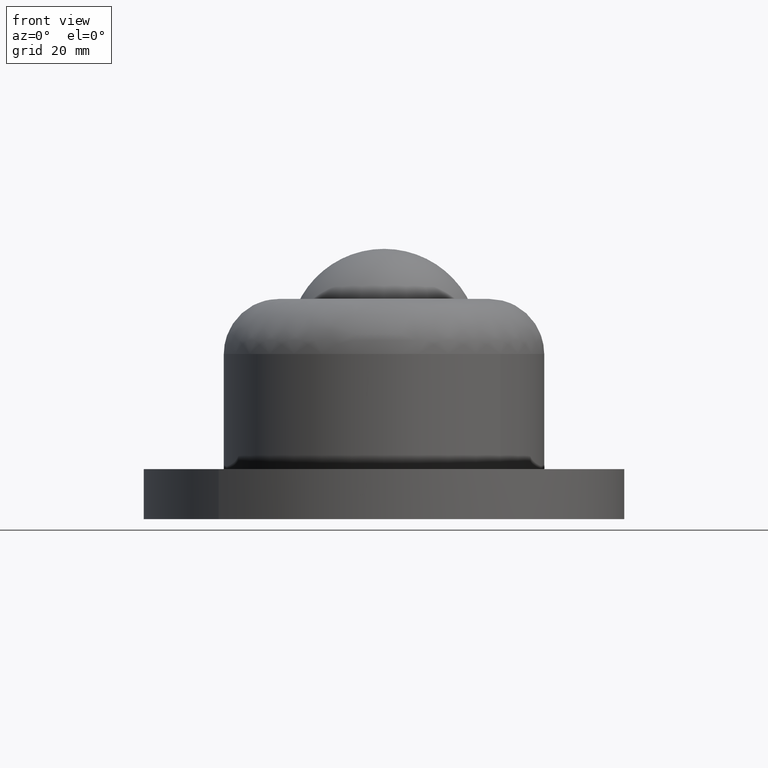
[diagram: clean part render]
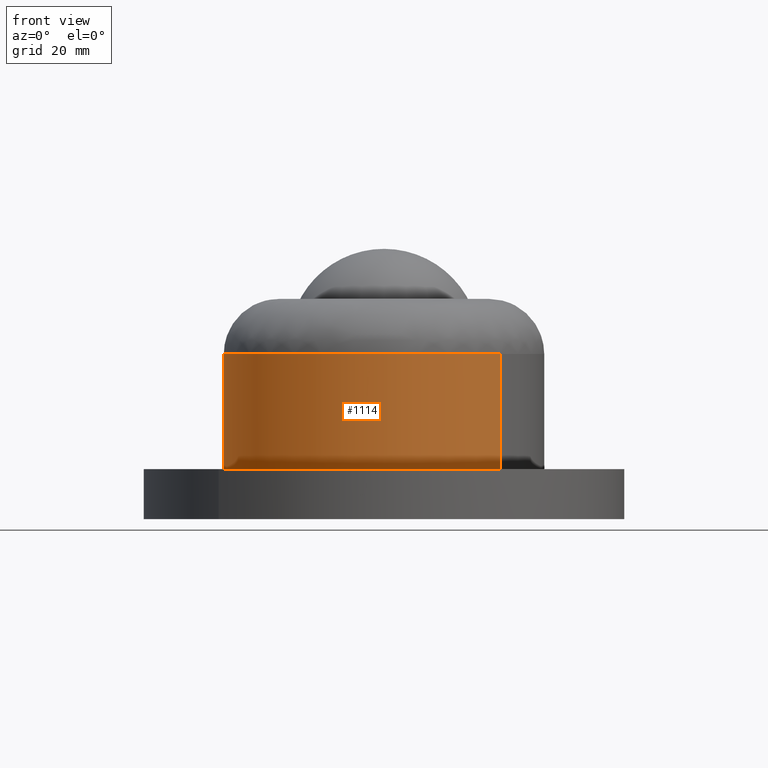
[diagram: same view with one face highlighted and labeled with its STEP entity id]
A machine part, front view. The second image highlights one B-rep face of the part: STEP entity #1114.
In plain terms, the highlighted face is a freeform B-spline surface patch.
Its self-contained STEP definition (entity closure, byte-faithful):
#802=CARTESIAN_POINT('',(-31.999999999986311,-3.502005E-015,32.999987729900710));
#803=VERTEX_POINT('',#802);
#856=CARTESIAN_POINT('',(-23.211979667101119,22.027346203090371,32.999987729899402));
#857=VERTEX_POINT('',#856);
#870=CARTESIAN_POINT('',(-31.999999999986311,-3.502005E-015,32.999987729900710));
#871=CARTESIAN_POINT('',(-32.000123657495820,1.708247174777304,32.999987729900432));
#872=CARTESIAN_POINT('',(-31.761294798825929,4.681816467675262,32.999987729900710));
#873=CARTESIAN_POINT('',(-30.754086142089200,9.197562946077358,32.999987729900099));
#874=CARTESIAN_POINT('',(-29.206457528460440,13.361188404306640,32.999987729899729));
#875=CARTESIAN_POINT('',(-26.724517056942741,17.859649025212072,32.999987729899857));
#876=CARTESIAN_POINT('',(-24.562212486051109,20.604791163184810,32.999987729899338));
#877=CARTESIAN_POINT('',(-23.211979667101119,22.027346203090371,32.999987729899402));
#878=B_SPLINE_CURVE_WITH_KNOTS('',3,(#870,#871,#872,#873,#874,#875,#876,#877),.UNSPECIFIED.,.F.,.U.,(4,1,1,1,1,4),(0.000000015660500,5.124729688280517,8.920838670288161,13.855734277039060,18.411069375794050,24.295018669714690),.UNSPECIFIED.);
#879=EDGE_CURVE('',#803,#857,#878,.T.);
#914=CARTESIAN_POINT('',(-0.000001200577572,-31.999999999999979,32.999987729900852));
#915=VERTEX_POINT('',#914);
#916=CARTESIAN_POINT('',(-0.000001200577572,-31.999999999999979,32.999987729900852));
#917=CARTESIAN_POINT('',(-1.832593725610284,-32.000151072780000,32.999987729900752));
#918=CARTESIAN_POINT('',(-5.497752245003738,-31.684327462323299,32.999987729900980));
#919=CARTESIAN_POINT('',(-10.134868624449419,-30.462156898002061,32.999987729900766));
#920=CARTESIAN_POINT('',(-14.186550173143701,-28.769199173201741,32.999987729900923));
#921=CARTESIAN_POINT('',(-17.382848748315642,-26.958522463183730,32.999987729900312));
#922=CARTESIAN_POINT('',(-20.601258039579200,-24.586859628417191,32.999987729901022));
#923=CARTESIAN_POINT('',(-23.133926810136099,-22.205010220319711,32.999987729900951));
#924=CARTESIAN_POINT('',(-25.513034237715310,-19.412470190739850,32.999987729900518));
#925=CARTESIAN_POINT('',(-27.738935157128129,-16.168249013861860,32.999987729901150));
#926=CARTESIAN_POINT('',(-29.546892213482082,-12.520944721599770,32.999987729901008));
#927=CARTESIAN_POINT('',(-30.804482787771409,-8.864978046018488,32.999987729900511));
#928=CARTESIAN_POINT('',(-31.731329518767289,-4.908674385122867,32.999987729900852));
#929=CARTESIAN_POINT('',(-32.000169778297497,-1.898056023174957,32.999987729900838));
#930=CARTESIAN_POINT('',(-31.999999999986311,-3.502005E-015,32.999987729900710));
#931=B_SPLINE_CURVE_WITH_KNOTS('',3,(#916,#917,#918,#919,#920,#921,#922,#923,#924,#925,#926,#927,#928,#929,#930),.UNSPECIFIED.,.F.,.U.,(4,1,1,1,1,1,1,1,1,1,1,1,4),(0.000000059422526,5.497765437038808,10.995591271332620,14.333547147425181,18.653262984807011,21.991185462560221,26.310831705091449,29.059765240844179,32.986754328207503,38.091872600391191,41.233483651601553,44.571424372430130,50.265560632709203),.UNSPECIFIED.);
#932=EDGE_CURVE('',#915,#803,#931,.T.);
#934=CARTESIAN_POINT('',(23.211979667101279,-22.027346203090509,32.999987729899608));
#935=VERTEX_POINT('',#934);
#936=CARTESIAN_POINT('',(23.211979667101279,-22.027346203090509,32.999987729899608));
#937=CARTESIAN_POINT('',(22.141286469020471,-23.155743881221429,32.999987729899637));
#938=CARTESIAN_POINT('',(19.985268988007910,-25.118901211776851,32.999987729899807));
#939=CARTESIAN_POINT('',(16.243951938423479,-27.691453196227592,32.999987729899999));
#940=CARTESIAN_POINT('',(12.056303619602909,-29.781164212077499,32.999987729900198));
#941=CARTESIAN_POINT('',(6.560064939560711,-31.526781858934410,32.999987729900390));
#942=CARTESIAN_POINT('',(2.434781278606721,-32.000493059122093,32.999987729901008));
#943=CARTESIAN_POINT('',(-0.000001200577572,-31.999999999999979,32.999987729900852));
#944=B_SPLINE_CURVE_WITH_KNOTS('',3,(#936,#937,#938,#939,#940,#941,#942,#943),.UNSPECIFIED.,.F.,.U.,(4,1,1,1,1,4),(0.000000017193859,4.666574535121153,8.724485216461694,13.593935224005030,18.666324971839408,25.970543867657959),.UNSPECIFIED.);
#945=EDGE_CURVE('',#935,#915,#944,.T.);
#985=CARTESIAN_POINT('',(23.211979666960371,-22.027346203247070,10.0));
#986=VERTEX_POINT('',#985);
#987=CARTESIAN_POINT('',(23.211979667101279,-22.027346203090509,32.999987729899608));
#988=CARTESIAN_POINT('',(23.211979666960371,-22.027346203247070,10.0));
#989=QUASI_UNIFORM_CURVE('',1,(#987,#988),.UNSPECIFIED.,.F.,.U.);
#990=EDGE_CURVE('',#935,#986,#989,.T.);
#1024=CARTESIAN_POINT('',(-23.211979666960222,22.027346203246939,10.0));
#1025=VERTEX_POINT('',#1024);
#1037=CARTESIAN_POINT('',(-23.211979667101119,22.027346203090371,32.999987729899402));
#1038=CARTESIAN_POINT('',(-23.211979666960222,22.027346203246939,10.0));
#1039=QUASI_UNIFORM_CURVE('',1,(#1037,#1038),.UNSPECIFIED.,.F.,.U.);
#1040=EDGE_CURVE('',#857,#1025,#1039,.T.);
#1045=CARTESIAN_POINT('',(23.211979872393201,-22.027346422200122,33.574987423148528));
#1046=CARTESIAN_POINT('',(1.184633450193076,-45.239326294593326,33.574987423148528));
#1047=CARTESIAN_POINT('',(-22.027346422200122,-23.211979872393201,33.574987423148528));
#1048=CARTESIAN_POINT('',(-45.239326294593326,-1.184633450193076,33.574987423148528));
#1049=CARTESIAN_POINT('',(-23.211979872393201,22.027346422200122,33.574987423148528));
#1050=CARTESIAN_POINT('',(23.211979872393201,-22.027346422200122,9.410625314421285));
#1051=CARTESIAN_POINT('',(1.184633450193076,-45.239326294593326,9.410625314421285));
#1052=CARTESIAN_POINT('',(-22.027346422200122,-23.211979872393201,9.410625314421285));
#1053=CARTESIAN_POINT('',(-45.239326294593326,-1.184633450193076,9.410625314421285));
#1054=CARTESIAN_POINT('',(-23.211979872393201,22.027346422200122,9.410625314421285));
#1062=(BOUNDED_SURFACE()B_SPLINE_SURFACE(2,1,((#1045,#1050),(#1046,#1051),(#1047,#1052),(#1048,#1053),(#1049,#1054)),.UNSPECIFIED.,.F.,.F.,.U.)B_SPLINE_SURFACE_WITH_KNOTS((3,2,3),(2,2),(0.0,53.019335983756150,106.038671967512300),(0.0,24.164362108727250),.UNSPECIFIED.)GEOMETRIC_REPRESENTATION_ITEM()RATIONAL_B_SPLINE_SURFACE(((1.0,1.0),(0.707106781186548,0.707106781186548),(1.0,1.0),(0.707106781186548,0.707106781186548),(1.0,1.0)))REPRESENTATION_ITEM('')SURFACE());
#1063=ORIENTED_EDGE('',*,*,#879,.T.);
#1064=ORIENTED_EDGE('',*,*,#1040,.T.);
#1065=CARTESIAN_POINT('',(-32.0,0.0,10.0));
#1066=VERTEX_POINT('',#1065);
#1067=CARTESIAN_POINT('',(-32.0,0.0,10.0));
#1068=CARTESIAN_POINT('',(-32.000010083839207,1.202089493225234,9.999999999999986));
#1069=CARTESIAN_POINT('',(-31.832352331722841,4.175717040506156,10.000000000000030));
#1070=CARTESIAN_POINT('',(-31.005104081521988,8.348072422968215,10.000000000000011));
#1071=CARTESIAN_POINT('',(-29.491421954813848,12.653063665878570,9.999999999999998));
#1072=CARTESIAN_POINT('',(-27.171212126139391,17.237036594499859,10.000000000000011));
#1073=CARTESIAN_POINT('',(-24.823739313789261,20.329592992284159,10.0));
#1074=CARTESIAN_POINT('',(-23.211979666960222,22.027346203246939,10.0));
#1075=B_SPLINE_CURVE_WITH_KNOTS('',3,(#1067,#1068,#1069,#1070,#1071,#1072,#1073,#1074),.UNSPECIFIED.,.F.,.U.,(4,1,1,1,1,4),(0.000000015664284,3.606281953040238,8.920838670370655,12.716910991062660,17.272235942911539,24.295018669932389),.UNSPECIFIED.);
#1076=EDGE_CURVE('',#1066,#1025,#1075,.T.);
#1077=ORIENTED_EDGE('',*,*,#1076,.F.);
#1078=CARTESIAN_POINT('',(-0.000001200577533,-31.999999999999979,10.0));
#1079=VERTEX_POINT('',#1078);
#1080=CARTESIAN_POINT('',(-0.000001200577533,-31.999999999999979,10.0));
#1081=CARTESIAN_POINT('',(-1.832603525319889,-32.000184804234600,9.999999999999973));
#1082=CARTESIAN_POINT('',(-4.450523847659828,-31.774447324484019,10.000000000000020));
#1083=CARTESIAN_POINT('',(-8.294982879751158,-30.960575684697861,9.999999999999996));
#1084=CARTESIAN_POINT('',(-11.107996476943180,-30.069419941107949,10.000000000000041));
#1085=CARTESIAN_POINT('',(-14.294583987184170,-28.691827622207260,9.999999999999927));
#1086=CARTESIAN_POINT('',(-17.615249993240631,-26.837647078192621,10.000000000000140));
#1087=CARTESIAN_POINT('',(-21.018773720643878,-24.264485547109359,10.000000000000069));
#1088=CARTESIAN_POINT('',(-23.986235255830440,-21.296947619712711,9.999999999999979));
#1089=CARTESIAN_POINT('',(-26.456357855654961,-18.151760291539969,10.000000000000020));
#1090=CARTESIAN_POINT('',(-28.311209209085732,-15.057107237686420,9.999999999999991));
#1091=CARTESIAN_POINT('',(-30.002621613885630,-11.364384788105550,10.000000000000020));
#1092=CARTESIAN_POINT('',(-31.529633102046098,-6.544813615218375,9.999999999999975));
#1093=CARTESIAN_POINT('',(-32.000486388929083,-2.421677130434341,10.000000000000050));
#1094=CARTESIAN_POINT('',(-32.0,0.0,10.0));
#1095=B_SPLINE_CURVE_WITH_KNOTS('',3,(#1080,#1081,#1082,#1083,#1084,#1085,#1086,#1087,#1088,#1089,#1090,#1091,#1092,#1093,#1094),.UNSPECIFIED.,.F.,.U.,(4,1,1,1,1,1,1,1,1,1,1,1,4),(0.000000059417403,5.497765437036399,7.853975171338718,11.780990435003821,14.333547147426691,18.260537489197581,23.169327851717000,27.096234065318718,30.826896349599249,35.146612144533812,37.895521474560297,43.000626834076897,50.265560632722980),.UNSPECIFIED.);
#1096=EDGE_CURVE('',#1079,#1066,#1095,.T.);
#1097=ORIENTED_EDGE('',*,*,#1096,.F.);
#1098=CARTESIAN_POINT('',(23.211979666960371,-22.027346203247070,10.0));
#1099=CARTESIAN_POINT('',(21.629364900860860,-23.695572082962741,10.000000000000011));
#1100=CARTESIAN_POINT('',(18.465433603096539,-26.380388819141348,9.999999999999982));
#1101=CARTESIAN_POINT('',(13.786353576503521,-28.999999987818839,10.000000000000041));
#1102=CARTESIAN_POINT('',(9.614282960864161,-30.607295200826659,9.999999999999927));
#1103=CARTESIAN_POINT('',(5.207573777863902,-31.704929487254649,10.000000000000229));
#1104=CARTESIAN_POINT('',(1.893692953706911,-32.000192752333938,9.999999999999631));
#1105=CARTESIAN_POINT('',(-0.000001200577533,-31.999999999999979,10.0));
#1106=B_SPLINE_CURVE_WITH_KNOTS('',3,(#1098,#1099,#1100,#1101,#1102,#1103,#1104,#1105),.UNSPECIFIED.,.F.,.U.,(4,1,1,1,1,4),(0.000000017187929,6.898426331581920,12.376608887229100,16.028680193080270,20.289490841668801,25.970543867449109),.UNSPECIFIED.);
#1107=EDGE_CURVE('',#986,#1079,#1106,.T.);
#1108=ORIENTED_EDGE('',*,*,#1107,.F.);
#1109=ORIENTED_EDGE('',*,*,#990,.F.);
#1110=ORIENTED_EDGE('',*,*,#945,.T.);
#1111=ORIENTED_EDGE('',*,*,#932,.T.);
#1112=EDGE_LOOP('',(#1063,#1064,#1077,#1097,#1108,#1109,#1110,#1111));
#1113=FACE_OUTER_BOUND('',#1112,.T.);
#1114=ADVANCED_FACE('',(#1113),#1062,.T.);